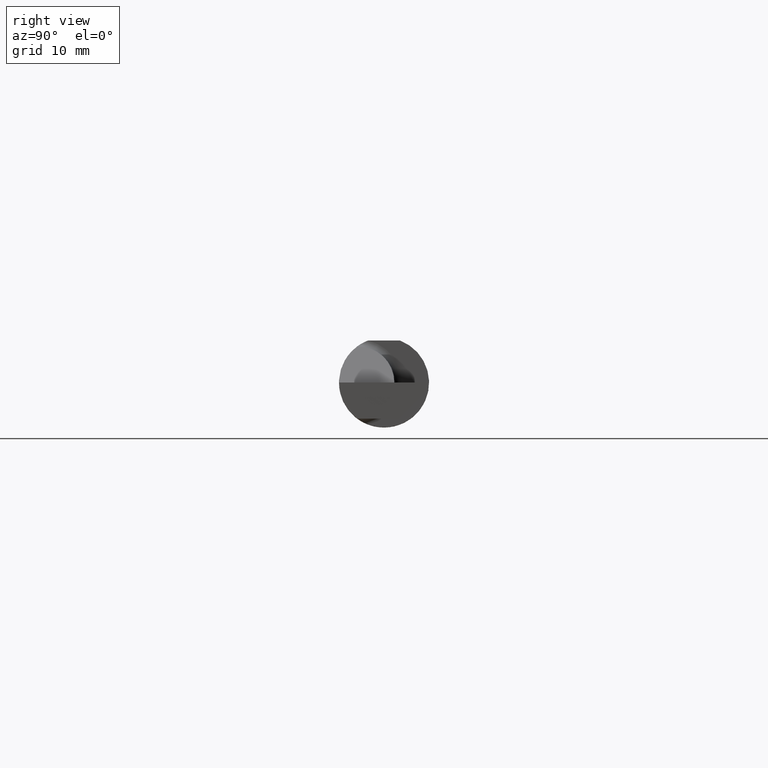
[diagram: clean part render]
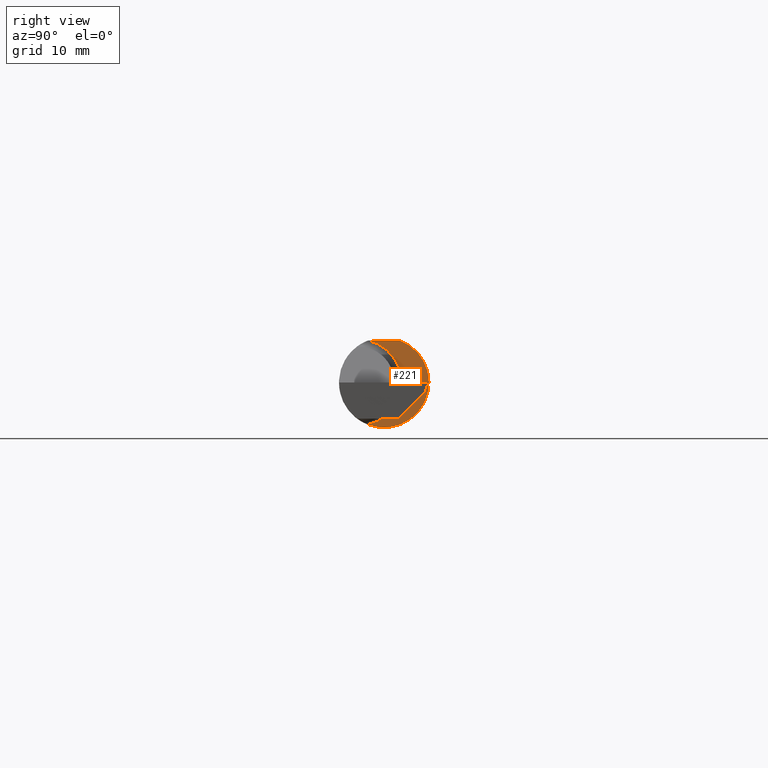
[diagram: same view with one face highlighted and labeled with its STEP entity id]
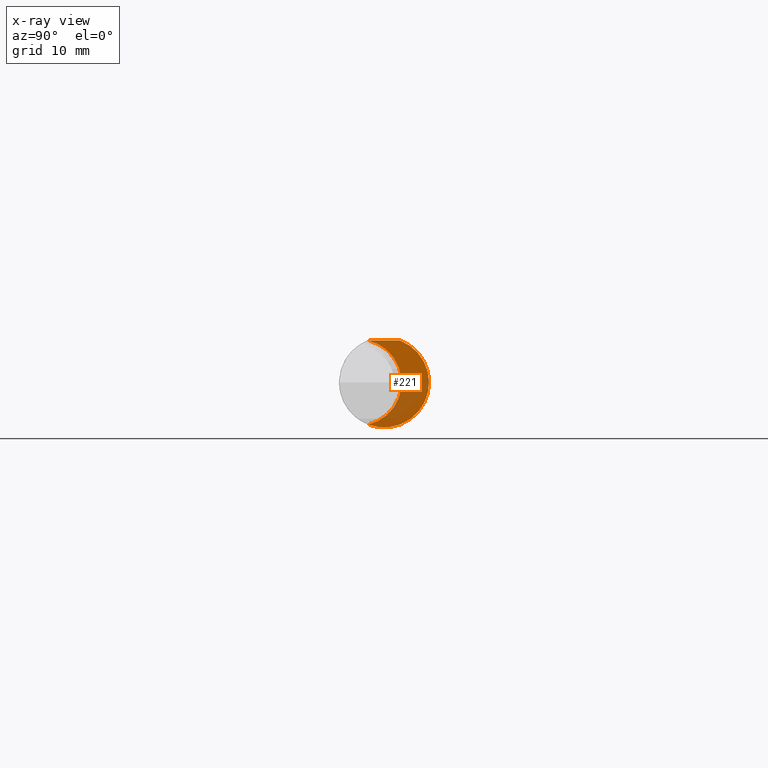
[diagram: x-ray of the same camera — body ghosted, the highlighted face saturated]
A machine part, right view. The second image highlights one B-rep face of the part: STEP entity #221.
The next image is the same camera in x-ray: the body ghosted, the highlighted face saturated — about 30% of this face is hidden behind the body in this view.
In plain terms, the highlighted planar face has unit normal (1, 0, 0).
Its self-contained STEP definition (entity closure, byte-faithful):
#12 = ORIENTED_EDGE ( 'NONE', *, *, #996, .T. ) ;
#30 = EDGE_CURVE ( 'NONE', #181, #561, #1040, .T. ) ;
#78 = CARTESIAN_POINT ( 'NONE',  ( 2.075000000000000178, -0.1561000000000000165, 0.1460999999999999799 ) ) ;
#107 = AXIS2_PLACEMENT_3D ( 'NONE', #725, #566, #146 ) ;
#126 = EDGE_LOOP ( 'NONE', ( #327, #832, #905, #12 ) ) ;
#131 = EDGE_CURVE ( 'NONE', #819, #561, #1082, .T. ) ;
#140 = DIRECTION ( 'NONE',  ( 0.000000000000000000, 0.000000000000000000, -1.000000000000000000 ) ) ;
#146 = DIRECTION ( 'NONE',  ( 0.000000000000000000, 0.000000000000000000, -1.000000000000000000 ) ) ;
#181 = VERTEX_POINT ( 'NONE', #228 ) ;
#192 = EDGE_CURVE ( 'NONE', #819, #343, #913, .T. ) ;
#218 = PLANE ( 'NONE',  #107 ) ;
#221 = ADVANCED_FACE ( 'NONE', ( #980 ), #218, .T. ) ;
#228 = CARTESIAN_POINT ( 'NONE',  ( 2.074999999999999734, -0.05502817059483720158, -0.1460791239054557156 ) ) ;
#327 = ORIENTED_EDGE ( 'NONE', *, *, #30, .T. ) ;
#343 = VERTEX_POINT ( 'NONE', #352 ) ;
#345 = VECTOR ( 'NONE', #643, 39.37007874015748143 ) ;
#352 = CARTESIAN_POINT ( 'NONE',  ( 2.074999999999999734, -0.05502817059483720158, 0.1460791239054557156 ) ) ;
#360 = AXIS2_PLACEMENT_3D ( 'NONE', #384, #818, #140 ) ;
#364 = DIRECTION ( 'NONE',  ( 0.000000000000000000, 0.000000000000000000, -1.000000000000000000 ) ) ;
#384 = CARTESIAN_POINT ( 'NONE',  ( 2.075000000000000178, 0.000000000000000000, 0.000000000000000000 ) ) ;
#551 = AXIS2_PLACEMENT_3D ( 'NONE', #956, #794, #364 ) ;
#561 = VERTEX_POINT ( 'NONE', #761 ) ;
#566 = DIRECTION ( 'NONE',  ( 1.000000000000000000, 0.000000000000000000, 0.000000000000000000 ) ) ;
#587 = CARTESIAN_POINT ( 'NONE',  ( 2.075000000000000178, -0.05497272050753899270, 0.1460999999999999799 ) ) ;
#641 = AXIS2_PLACEMENT_3D ( 'NONE', #942, #1032, #866 ) ;
#643 = DIRECTION ( 'NONE',  ( -0.000000000000000000, 1.000000000000000000, 0.000000000000000000 ) ) ;
#719 = CIRCLE ( 'NONE', #641, 0.1499999999999999944 ) ;
#725 = CARTESIAN_POINT ( 'NONE',  ( 2.075000000000000178, 0.2359000000000000263, 0.000000000000000000 ) ) ;
#761 = CARTESIAN_POINT ( 'NONE',  ( 2.075000000000000178, 0.05497272050753900657, 0.1460999999999999799 ) ) ;
#794 = DIRECTION ( 'NONE',  ( 1.000000000000000000, 0.000000000000000000, 0.000000000000000000 ) ) ;
#818 = DIRECTION ( 'NONE',  ( 1.000000000000000000, 0.000000000000000000, 0.000000000000000000 ) ) ;
#819 = VERTEX_POINT ( 'NONE', #587 ) ;
#832 = ORIENTED_EDGE ( 'NONE', *, *, #131, .F. ) ;
#866 = DIRECTION ( 'NONE',  ( 0.000000000000000000, 0.000000000000000000, 1.000000000000000000 ) ) ;
#905 = ORIENTED_EDGE ( 'NONE', *, *, #192, .T. ) ;
#913 = CIRCLE ( 'NONE', #360, 0.1560999999999999888 ) ;
#942 = CARTESIAN_POINT ( 'NONE',  ( 2.074999999999999734, -0.08909999999999998477, 0.000000000000000000 ) ) ;
#956 = CARTESIAN_POINT ( 'NONE',  ( 2.075000000000000178, 0.000000000000000000, 0.000000000000000000 ) ) ;
#980 = FACE_OUTER_BOUND ( 'NONE', #126, .T. ) ;
#996 = EDGE_CURVE ( 'NONE', #343, #181, #719, .T. ) ;
#1032 = DIRECTION ( 'NONE',  ( -1.000000000000000000, -0.000000000000000000, -0.000000000000000000 ) ) ;
#1040 = CIRCLE ( 'NONE', #551, 0.1560999999999999888 ) ;
#1082 = LINE ( 'NONE', #78, #345 ) ;